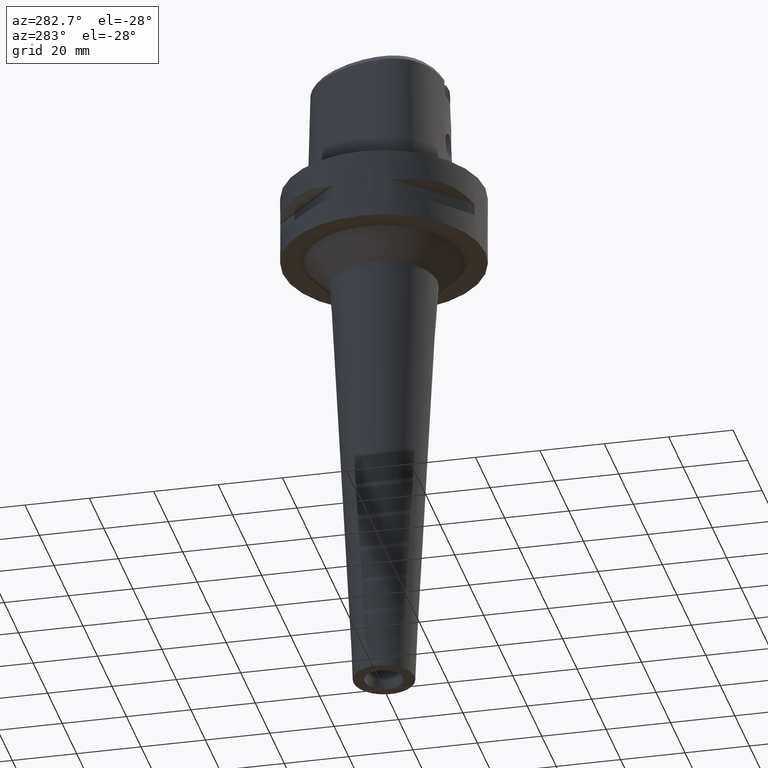
[diagram: clean part render]
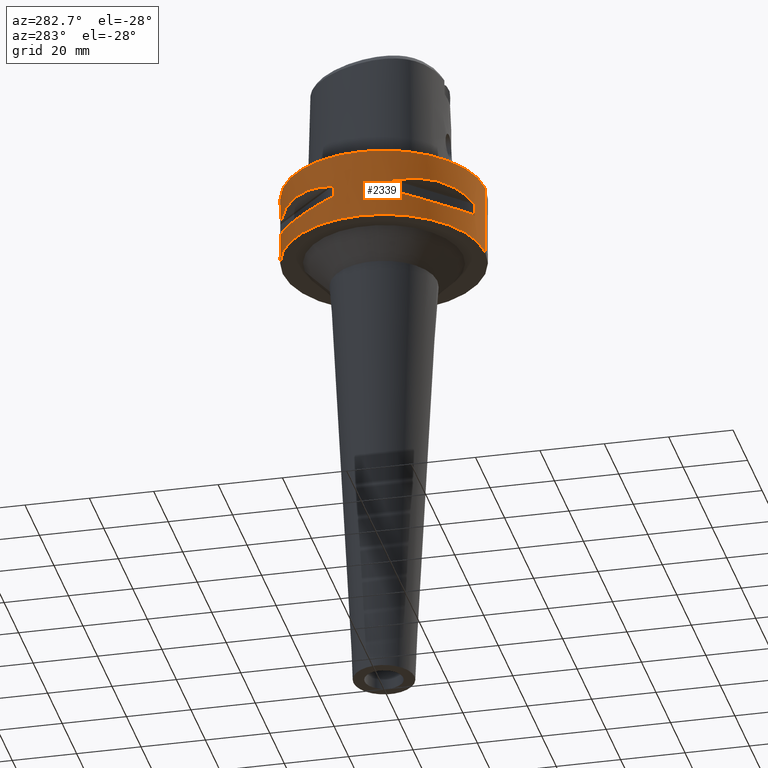
[diagram: same view with one face highlighted and labeled with its STEP entity id]
A machine part, auxiliary view. The second image highlights one B-rep face of the part: STEP entity #2339.
In plain terms, the highlighted cylindrical surface (partial cylindrical patch) has radius 31.5 mm, axis along (0, 0, -1).
Its self-contained STEP definition (entity closure, byte-faithful):
#275=CARTESIAN_POINT('',(0.E0,1.325680160077E-14,0.E0));
#276=DIRECTION('',(0.E0,0.E0,-1.E0));
#277=DIRECTION('',(0.E0,-1.E0,0.E0));
#278=AXIS2_PLACEMENT_3D('',#275,#276,#277);
#371=DIRECTION('',(0.E0,0.E0,-1.E0));
#372=VECTOR('',#371,2.2E1);
#373=CARTESIAN_POINT('',(0.E0,-3.15E1,0.E0));
#374=LINE('',#373,#372);
#378=DIRECTION('',(0.E0,0.E0,-1.E0));
#379=VECTOR('',#378,4.1E0);
#380=CARTESIAN_POINT('',(-8.981198972017E0,3.019251670572E1,-9.95E0));
#381=LINE('',#380,#379);
#385=CARTESIAN_POINT('',(-1.044775724750E1,2.971690375018E1,-1.405E1));
#386=CARTESIAN_POINT('',(-1.282388988809E1,2.888151197365E1,-1.467900482380E1));
#387=CARTESIAN_POINT('',(-1.711282138769E1,2.674739463903E1,-1.555870402293E1));
#388=CARTESIAN_POINT('',(-2.244574140438E1,2.244574140438E1,-1.597971692371E1));
#389=CARTESIAN_POINT('',(-2.674739463903E1,1.711282138769E1,-1.555870402293E1));
#390=CARTESIAN_POINT('',(-2.888151197365E1,1.282388988809E1,-1.467900482380E1));
#391=CARTESIAN_POINT('',(-2.971690375018E1,1.044775724750E1,-1.405E1));
#396=DIRECTION('',(0.E0,0.E0,1.E0));
#397=VECTOR('',#396,4.1E0);
#398=CARTESIAN_POINT('',(-3.019251670572E1,8.981198972017E0,-1.405E1));
#399=LINE('',#398,#397);
#403=DIRECTION('',(0.E0,0.E0,-1.E0));
#404=VECTOR('',#403,4.1E0);
#405=CARTESIAN_POINT('',(-3.019251670572E1,-8.981198972017E0,-9.95E0));
#406=LINE('',#405,#404);
#410=CARTESIAN_POINT('',(-2.971690375018E1,-1.044775724750E1,-1.405E1));
#411=CARTESIAN_POINT('',(-2.888151197365E1,-1.282388988809E1,
-1.467900482380E1));
#412=CARTESIAN_POINT('',(-2.674739463903E1,-1.711282138769E1,
-1.555870402292E1));
#413=CARTESIAN_POINT('',(-2.244574140438E1,-2.244574140438E1,
-1.597971692371E1));
#414=CARTESIAN_POINT('',(-1.711282138769E1,-2.674739463903E1,
-1.555870402292E1));
#415=CARTESIAN_POINT('',(-1.282388988809E1,-2.888151197365E1,
-1.467900482380E1));
#416=CARTESIAN_POINT('',(-1.044775724750E1,-2.971690375018E1,-1.405E1));
#421=DIRECTION('',(0.E0,0.E0,1.E0));
#422=VECTOR('',#421,4.1E0);
#423=CARTESIAN_POINT('',(-8.981198972017E0,-3.019251670572E1,-1.405E1));
#424=LINE('',#423,#422);
#428=DIRECTION('',(0.E0,0.E0,-1.E0));
#429=VECTOR('',#428,2.2E1);
#430=CARTESIAN_POINT('',(0.E0,3.15E1,0.E0));
#431=LINE('',#430,#429);
#493=CARTESIAN_POINT('',(0.E0,1.325680160077E-14,-2.2E1));
#494=DIRECTION('',(0.E0,0.E0,1.E0));
#495=DIRECTION('',(0.E0,1.E0,0.E0));
#496=AXIS2_PLACEMENT_3D('',#493,#494,#495);
#1290=CARTESIAN_POINT('',(-1.044775724750E1,2.971690375018E1,
-9.950000000001E0));
#1291=CARTESIAN_POINT('',(-1.282388988809E1,2.888151197365E1,
-9.320995176200E0));
#1292=CARTESIAN_POINT('',(-1.711282138769E1,2.674739463903E1,
-8.441295977077E0));
#1293=CARTESIAN_POINT('',(-2.244574140438E1,2.244574140438E1,
-8.020283076297E0));
#1294=CARTESIAN_POINT('',(-2.674739463903E1,1.711282138769E1,
-8.441295977077E0));
#1295=CARTESIAN_POINT('',(-2.888151197365E1,1.282388988809E1,
-9.320995176200E0));
#1296=CARTESIAN_POINT('',(-2.971690375018E1,1.044775724750E1,
-9.950000000001E0));
#1301=CARTESIAN_POINT('',(0.E0,1.325680160077E-14,-9.95E0));
#1302=DIRECTION('',(0.E0,0.E0,1.E0));
#1303=DIRECTION('',(-9.433937698469E-1,3.316748332541E-1,0.E0));
#1304=AXIS2_PLACEMENT_3D('',#1301,#1302,#1303);
#1309=CARTESIAN_POINT('',(0.E0,1.325680160077E-14,-9.95E0));
#1310=DIRECTION('',(0.E0,0.E0,1.E0));
#1311=DIRECTION('',(-2.851174276832E-1,9.584925938323E-1,0.E0));
#1312=AXIS2_PLACEMENT_3D('',#1309,#1310,#1311);
#1331=CARTESIAN_POINT('',(0.E0,1.325680160077E-14,-1.405E1));
#1332=DIRECTION('',(0.E0,0.E0,-1.E0));
#1333=DIRECTION('',(-9.584925938323E-1,2.851174276832E-1,0.E0));
#1334=AXIS2_PLACEMENT_3D('',#1331,#1332,#1333);
#1339=CARTESIAN_POINT('',(0.E0,1.325680160077E-14,-1.405E1));
#1340=DIRECTION('',(0.E0,0.E0,-1.E0));
#1341=DIRECTION('',(-3.316748332541E-1,9.433937698469E-1,0.E0));
#1342=AXIS2_PLACEMENT_3D('',#1339,#1340,#1341);
#1361=CARTESIAN_POINT('',(-2.971690375018E1,-1.044775724750E1,
-9.950000000001E0));
#1362=CARTESIAN_POINT('',(-2.888151197365E1,-1.282388988809E1,
-9.320995176200E0));
#1363=CARTESIAN_POINT('',(-2.674739463903E1,-1.711282138769E1,
-8.441295977077E0));
#1364=CARTESIAN_POINT('',(-2.244574140438E1,-2.244574140438E1,
-8.020283076297E0));
#1365=CARTESIAN_POINT('',(-1.711282138769E1,-2.674739463903E1,
-8.441295977077E0));
#1366=CARTESIAN_POINT('',(-1.282388988809E1,-2.888151197365E1,
-9.320995176200E0));
#1367=CARTESIAN_POINT('',(-1.044775724750E1,-2.971690375018E1,
-9.950000000001E0));
#1372=CARTESIAN_POINT('',(0.E0,1.325680160077E-14,-9.95E0));
#1373=DIRECTION('',(0.E0,0.E0,1.E0));
#1374=DIRECTION('',(-3.316748332541E-1,-9.433937698469E-1,0.E0));
#1375=AXIS2_PLACEMENT_3D('',#1372,#1373,#1374);
#1380=CARTESIAN_POINT('',(0.E0,1.325680160077E-14,-9.95E0));
#1381=DIRECTION('',(0.E0,0.E0,1.E0));
#1382=DIRECTION('',(-9.584925938323E-1,-2.851174276832E-1,0.E0));
#1383=AXIS2_PLACEMENT_3D('',#1380,#1381,#1382);
#1402=CARTESIAN_POINT('',(0.E0,1.325680160077E-14,-1.405E1));
#1403=DIRECTION('',(0.E0,0.E0,-1.E0));
#1404=DIRECTION('',(-2.851174276832E-1,-9.584925938323E-1,0.E0));
#1405=AXIS2_PLACEMENT_3D('',#1402,#1403,#1404);
#1410=CARTESIAN_POINT('',(0.E0,1.325680160077E-14,-1.405E1));
#1411=DIRECTION('',(0.E0,0.E0,-1.E0));
#1412=DIRECTION('',(-9.433937698469E-1,-3.316748332541E-1,0.E0));
#1413=AXIS2_PLACEMENT_3D('',#1410,#1411,#1412);
#1458=CARTESIAN_POINT('',(0.E0,-3.15E1,0.E0));
#1459=CARTESIAN_POINT('',(0.E0,3.15E1,0.E0));
#1460=VERTEX_POINT('',#1458);
#1461=VERTEX_POINT('',#1459);
#1462=CARTESIAN_POINT('',(0.E0,3.15E1,-2.2E1));
#1463=VERTEX_POINT('',#1462);
#1464=CARTESIAN_POINT('',(0.E0,-3.15E1,-2.2E1));
#1465=VERTEX_POINT('',#1464);
#1466=VERTEX_POINT('',#1290);
#1467=VERTEX_POINT('',#1296);
#1468=CARTESIAN_POINT('',(-8.981198972020E0,3.019251670572E1,-9.95E0));
#1469=VERTEX_POINT('',#1468);
#1470=CARTESIAN_POINT('',(-8.981198972017E0,3.019251670572E1,-1.405E1));
#1471=VERTEX_POINT('',#1470);
#1472=CARTESIAN_POINT('',(-1.044775724750E1,2.971690375018E1,-1.405E1));
#1473=VERTEX_POINT('',#1472);
#1474=VERTEX_POINT('',#391);
#1475=CARTESIAN_POINT('',(-3.019251670572E1,8.981198972020E0,-1.405E1));
#1476=VERTEX_POINT('',#1475);
#1477=CARTESIAN_POINT('',(-3.019251670572E1,8.981198972017E0,-9.95E0));
#1478=VERTEX_POINT('',#1477);
#1479=VERTEX_POINT('',#1361);
#1480=VERTEX_POINT('',#1367);
#1481=CARTESIAN_POINT('',(-3.019251670572E1,-8.981198972020E0,-9.95E0));
#1482=VERTEX_POINT('',#1481);
#1483=CARTESIAN_POINT('',(-3.019251670572E1,-8.981198972017E0,-1.405E1));
#1484=VERTEX_POINT('',#1483);
#1485=CARTESIAN_POINT('',(-2.971690375018E1,-1.044775724750E1,-1.405E1));
#1486=VERTEX_POINT('',#1485);
#1487=VERTEX_POINT('',#416);
#1488=CARTESIAN_POINT('',(-8.981198972020E0,-3.019251670572E1,-1.405E1));
#1489=VERTEX_POINT('',#1488);
#1490=CARTESIAN_POINT('',(-8.981198972017E0,-3.019251670572E1,-9.95E0));
#1491=VERTEX_POINT('',#1490);
#2289=CARTESIAN_POINT('',(0.E0,1.325680160077E-14,8.25E0));
#2290=DIRECTION('',(0.E0,0.E0,-1.E0));
#2291=DIRECTION('',(0.E0,-1.E0,0.E0));
#2292=AXIS2_PLACEMENT_3D('',#2289,#2290,#2291);
#2293=CYLINDRICAL_SURFACE('',#2292,3.15E1);
#2295=ORIENTED_EDGE('',*,*,#2294,.F.);
#2296=ORIENTED_EDGE('',*,*,#2277,.F.);
#2298=ORIENTED_EDGE('',*,*,#2297,.T.);
#2300=ORIENTED_EDGE('',*,*,#2299,.F.);
#2301=EDGE_LOOP('',(#2295,#2296,#2298,#2300));
#2302=FACE_OUTER_BOUND('',#2301,.F.);
#2304=ORIENTED_EDGE('',*,*,#2303,.F.);
#2306=ORIENTED_EDGE('',*,*,#2305,.F.);
#2308=ORIENTED_EDGE('',*,*,#2307,.T.);
#2310=ORIENTED_EDGE('',*,*,#2309,.F.);
#2312=ORIENTED_EDGE('',*,*,#2311,.T.);
#2314=ORIENTED_EDGE('',*,*,#2313,.F.);
#2316=ORIENTED_EDGE('',*,*,#2315,.T.);
#2318=ORIENTED_EDGE('',*,*,#2317,.F.);
#2319=EDGE_LOOP('',(#2304,#2306,#2308,#2310,#2312,#2314,#2316,#2318));
#2320=FACE_BOUND('',#2319,.F.);
#2322=ORIENTED_EDGE('',*,*,#2321,.F.);
#2324=ORIENTED_EDGE('',*,*,#2323,.F.);
#2326=ORIENTED_EDGE('',*,*,#2325,.T.);
#2328=ORIENTED_EDGE('',*,*,#2327,.F.);
#2330=ORIENTED_EDGE('',*,*,#2329,.T.);
#2332=ORIENTED_EDGE('',*,*,#2331,.F.);
#2334=ORIENTED_EDGE('',*,*,#2333,.T.);
#2336=ORIENTED_EDGE('',*,*,#2335,.F.);
#2337=EDGE_LOOP('',(#2322,#2324,#2326,#2328,#2330,#2332,#2334,#2336));
#2338=FACE_BOUND('',#2337,.F.);
#279=CIRCLE('',#278,3.15E1);
#392=B_SPLINE_CURVE_WITH_KNOTS('',3,(#385,#386,#387,#388,#389,#390,#391),
.UNSPECIFIED.,.F.,.F.,(4,1,1,1,4),(0.E0,2.5E-1,5.E-1,7.5E-1,1.E0),
.UNSPECIFIED.);
#417=B_SPLINE_CURVE_WITH_KNOTS('',3,(#410,#411,#412,#413,#414,#415,#416),
.UNSPECIFIED.,.F.,.F.,(4,1,1,1,4),(0.E0,2.5E-1,5.E-1,7.5E-1,1.E0),
.UNSPECIFIED.);
#497=CIRCLE('',#496,3.15E1);
#1297=B_SPLINE_CURVE_WITH_KNOTS('',3,(#1290,#1291,#1292,#1293,#1294,#1295,
#1296),.UNSPECIFIED.,.F.,.F.,(4,1,1,1,4),(0.E0,2.5E-1,5.E-1,7.5E-1,1.E0),
.UNSPECIFIED.);
#1305=CIRCLE('',#1304,3.15E1);
#1313=CIRCLE('',#1312,3.15E1);
#1335=CIRCLE('',#1334,3.15E1);
#1343=CIRCLE('',#1342,3.15E1);
#1368=B_SPLINE_CURVE_WITH_KNOTS('',3,(#1361,#1362,#1363,#1364,#1365,#1366,
#1367),.UNSPECIFIED.,.F.,.F.,(4,1,1,1,4),(0.E0,2.5E-1,5.E-1,7.5E-1,1.E0),
.UNSPECIFIED.);
#1376=CIRCLE('',#1375,3.15E1);
#1384=CIRCLE('',#1383,3.15E1);
#1406=CIRCLE('',#1405,3.15E1);
#1414=CIRCLE('',#1413,3.15E1);
#2277=EDGE_CURVE('',#1460,#1461,#279,.T.);
#2294=EDGE_CURVE('',#1461,#1463,#431,.T.);
#2297=EDGE_CURVE('',#1460,#1465,#374,.T.);
#2299=EDGE_CURVE('',#1463,#1465,#497,.T.);
#2303=EDGE_CURVE('',#1466,#1467,#1297,.T.);
#2305=EDGE_CURVE('',#1469,#1466,#1313,.T.);
#2307=EDGE_CURVE('',#1469,#1471,#381,.T.);
#2309=EDGE_CURVE('',#1473,#1471,#1343,.T.);
#2311=EDGE_CURVE('',#1473,#1474,#392,.T.);
#2313=EDGE_CURVE('',#1476,#1474,#1335,.T.);
#2315=EDGE_CURVE('',#1476,#1478,#399,.T.);
#2317=EDGE_CURVE('',#1467,#1478,#1305,.T.);
#2321=EDGE_CURVE('',#1479,#1480,#1368,.T.);
#2323=EDGE_CURVE('',#1482,#1479,#1384,.T.);
#2325=EDGE_CURVE('',#1482,#1484,#406,.T.);
#2327=EDGE_CURVE('',#1486,#1484,#1414,.T.);
#2329=EDGE_CURVE('',#1486,#1487,#417,.T.);
#2331=EDGE_CURVE('',#1489,#1487,#1406,.T.);
#2333=EDGE_CURVE('',#1489,#1491,#424,.T.);
#2335=EDGE_CURVE('',#1480,#1491,#1376,.T.);
#2339=ADVANCED_FACE('',(#2302,#2320,#2338),#2293,.T.);